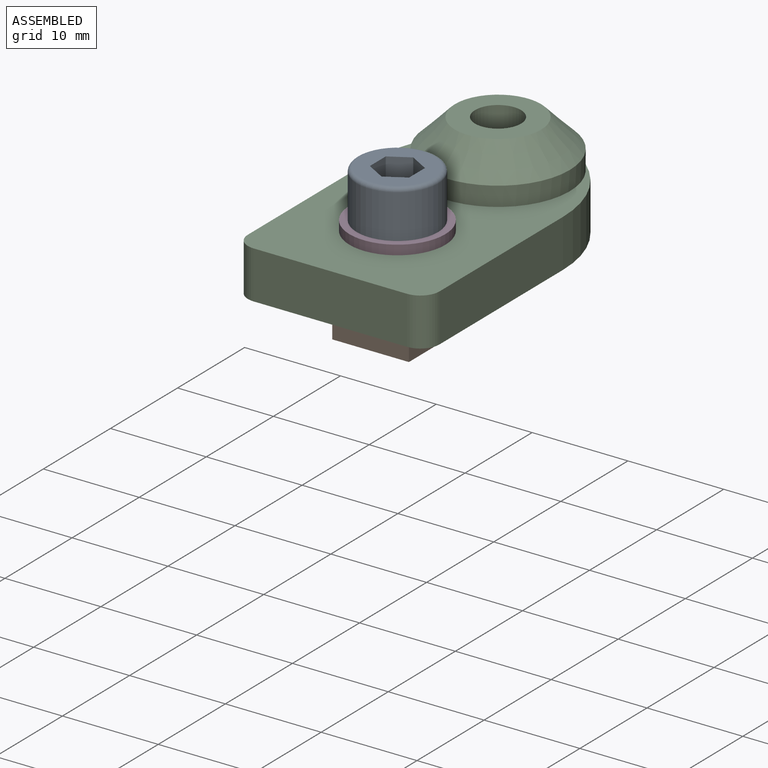
[diagram: assembled view]
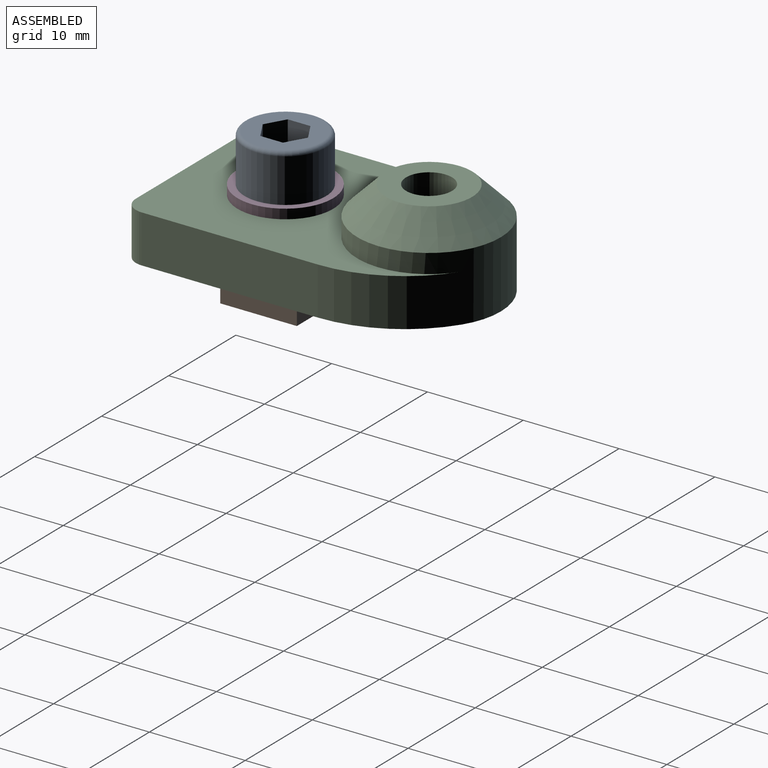
[diagram: assembled view, second angle]
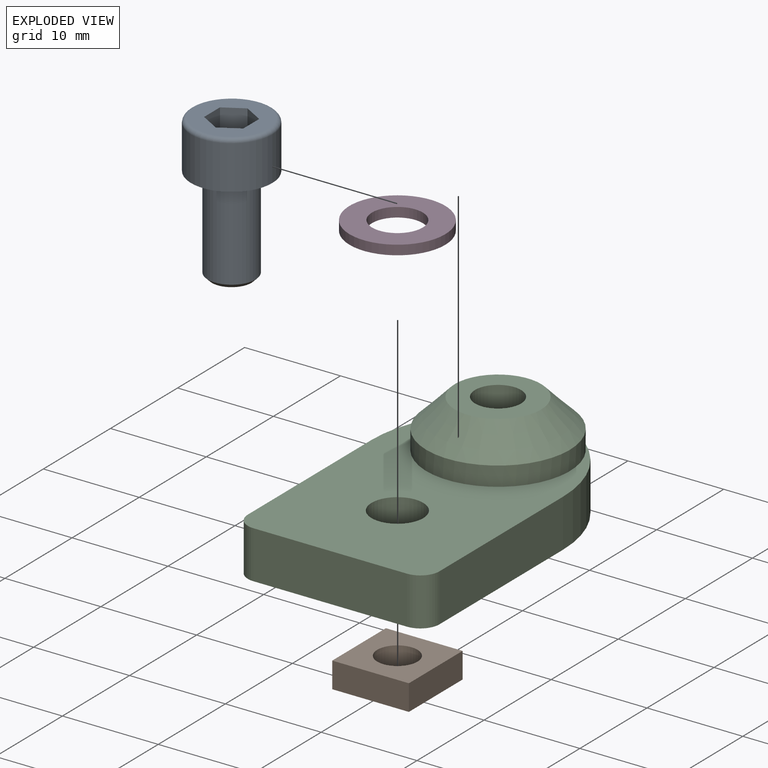
[diagram: exploded view]
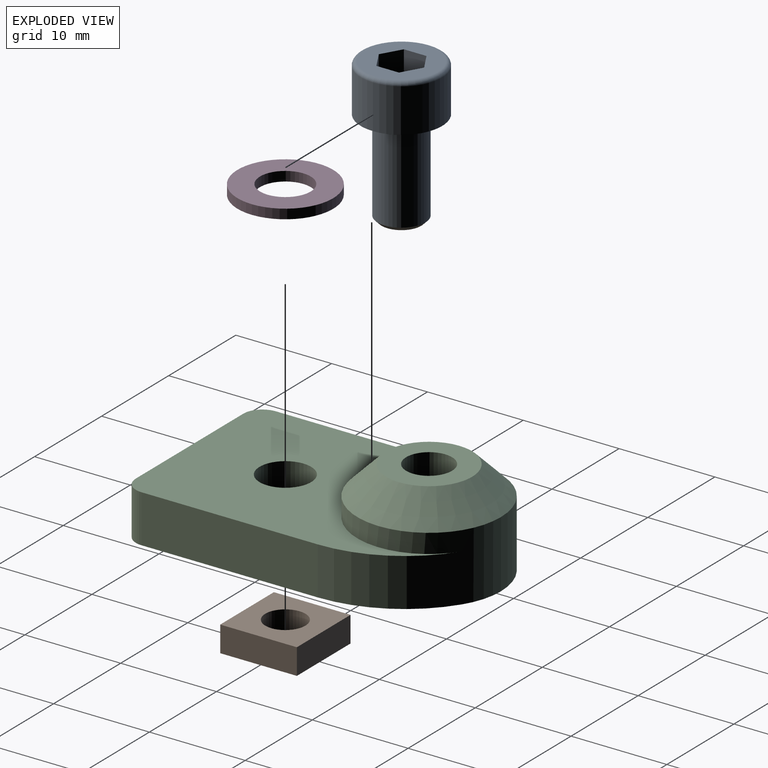
[diagram: exploded view, second angle]
ASSEMBLY  parts=4 mates=3
PART A: 14 faces, bbox 9.2x9.2x15 mm
  f0: plane 7.65x7.65mm, normal (0,0,-1), area 31.4mm2, adj f3,f4,f5,f6,f7,f8,f9
  f1: cylinder r=4.25mm len=8.5mm, axis (0,0,1), area 122.2mm2, adj f2,f3
  f2: plane 8.5x8.5mm, normal (0,0,1), area 37.1mm2, adj f1,f11
  f3: torus R=3.82mm, axis (0,0,-1), area 17.2mm2, adj f0,f1
  f4: plane 2.5x2.36mm, normal (-1,0,0), area 5.9mm2, adj f0,f5,f9,f10
  f5: plane 2.5x2.05mm, normal (-0.5,-0.87,0), area 5.9mm2, adj f0,f4,f6,f10
  f6: plane 2.5x2.05mm, normal (0.5,-0.87,0), area 5.9mm2, adj f0,f5,f7,f10
  f7: plane 2.5x2.36mm, normal (1,0,0), area 5.9mm2, adj f0,f6,f8,f10
  f8: plane 2.5x2.05mm, normal (0.5,0.87,0), area 5.9mm2, adj f0,f7,f9,f10
  f9: plane 2.5x2.05mm, normal (-0.5,0.87,0), area 5.9mm2, adj f0,f4,f8,f10
  f10: plane 4.73x4.1mm, normal (0,0,-1), area 14.5mm2, adj f4,f5,f6,f7,f8,f9
  f11: cylinder r=2.5mm len=9.57mm, axis (0,0,-1), area 150.3mm2, adj f2,f13
  f12: plane 4.13x4.13mm, normal (0,0,1), area 13.4mm2, adj f13
  f13: cone r=2.07mm half-angle=45deg, axis (0,0,-1), area 8.8mm2, adj f11,f12
PART B: 7 faces, bbox 8x8x2.7 mm
  f0: plane 8x2.7mm, normal (0,-1,0), area 21.6mm2, adj f1,f4,f5,f6
  f1: plane 8x2.7mm, normal (1,0,0), area 21.6mm2, adj f0,f2,f5,f6
  f2: plane 8x2.7mm, normal (0,1,0), area 21.6mm2, adj f1,f4,f5,f6
  f3: cylinder r=2.1mm len=4.2mm, axis (0,0,-1), area 35.6mm2, adj f5,f6
  f4: plane 8x2.7mm, normal (-1,0,0), area 21.6mm2, adj f0,f2,f5,f6
  f5: plane 8x8mm, normal (0,0,1), area 50.1mm2, adj f0,f1,f2,f3,f4
  f6: plane 8x8mm, normal (0,0,-1), area 50.1mm2, adj f0,f1,f2,f3,f4
PART C: 14 faces, bbox 20x32.5x10 mm
  f0: cylinder r=12.98mm len=10.89mm, axis (0,0,-1), area 64.6mm2, adj f1,f7,f8,f9
  f1: cylinder r=7.5mm len=15mm, axis (0,0,-1), area 137.4mm2, adj f0,f2,f8,f9,f11
  f2: cylinder r=12.98mm len=10.89mm, axis (0,0,-1), area 64.6mm2, adj f1,f3,f8,f9
  f3: plane 18.4x5mm, normal (-1,0,0), area 92mm2, adj f2,f8,f9,f12
  f4: plane 16x5mm, normal (0,-1,0), area 80mm2, adj f8,f9,f12,f13
  f5: cylinder r=2.7mm len=5.4mm, axis (0,0,-1), area 84.8mm2, adj f8,f9
  f6: cylinder r=2.4mm len=10mm, axis (0,0,-1), area 150.8mm2, adj f9,f10
  f7: plane 18.4x5mm, normal (1,0,0), area 92mm2, adj f0,f8,f9,f13
  f8: plane 31.29x20mm, normal (0,0,1), area 393.1mm2, adj f0,f1,f2,f3,f4,f5,f7,f12
  f9: plane 32.5x20mm, normal (0,0,-1), area 551.7mm2, adj f0,f1,f2,f3,f4,f5,f6,f7
  f10: plane 9x9mm, normal (0,0,1), area 45.5mm2, adj f6,f11
  f11: cone r=4.5mm half-angle=45deg, axis (0,0,-1), area 159.9mm2, adj f1,f10
  f12: cylinder r=2mm len=5mm, axis (0,0,-1), area 15.7mm2, adj f3,f4,f8,f9
  f13: cylinder r=2mm len=5mm, axis (0,0,-1), area 15.7mm2, adj f4,f7,f8,f9
PART D: 4 faces, bbox 10x10x1 mm
  f0: cylinder r=2.65mm len=5.3mm, axis (0,0,-1), area 16.7mm2, adj f2,f3
  f1: cylinder r=5mm len=10mm, axis (0,0,-1), area 31.4mm2, adj f2,f3
  f2: plane 10x10mm, normal (0,0,1), area 56.5mm2, adj f0,f1
  f3: plane 10x10mm, normal (0,0,-1), area 56.5mm2, adj f0,f1
PLACE A rot(axis=(1,0,0),180deg) t=(0.55,10.58,9.45)mm
PLACE B t=(0.55,10.58,-1.35)mm
PLACE C t=(0.55,0.58,3.45)mm
PLACE D t=(0.55,10.58,8.45)mm
MATE fastened D.f0 <-> C.f5  axis (0,0,-1) through (0.55,10.58,8.45)mm
MATE fastened A.f1 <-> D.f0  axis (0,0,-1) through (0.55,10.58,9.45)mm
MATE fastened B.f3 <-> A.f1  axis (0,0,-1) through (0.55,10.58,-1.35)mm
